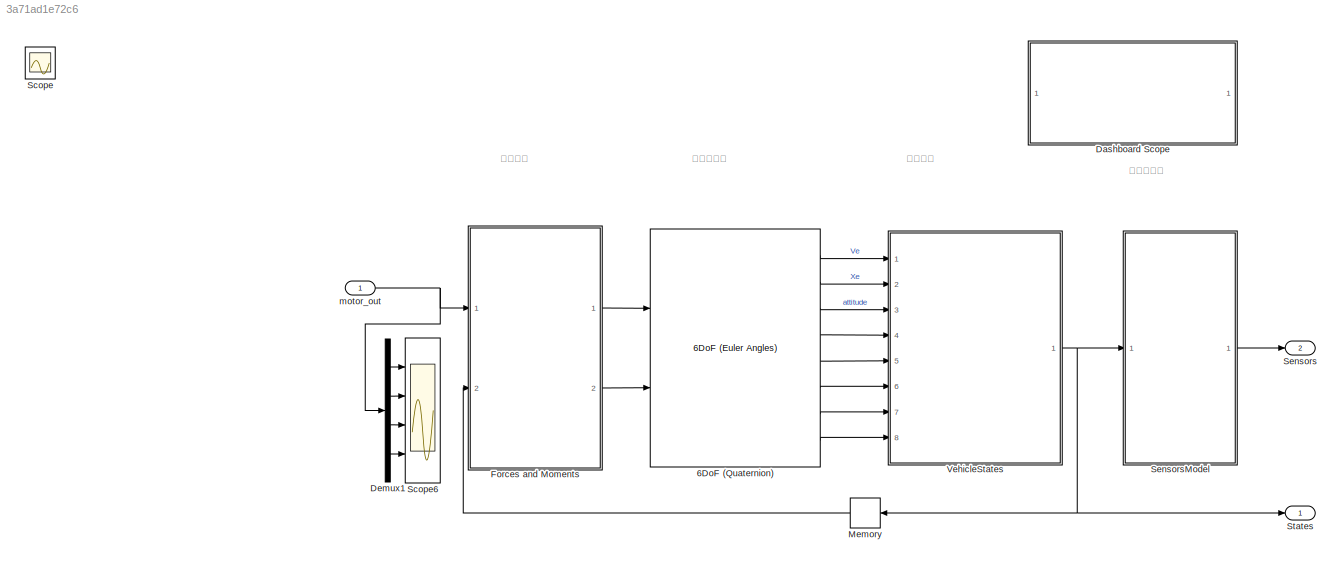
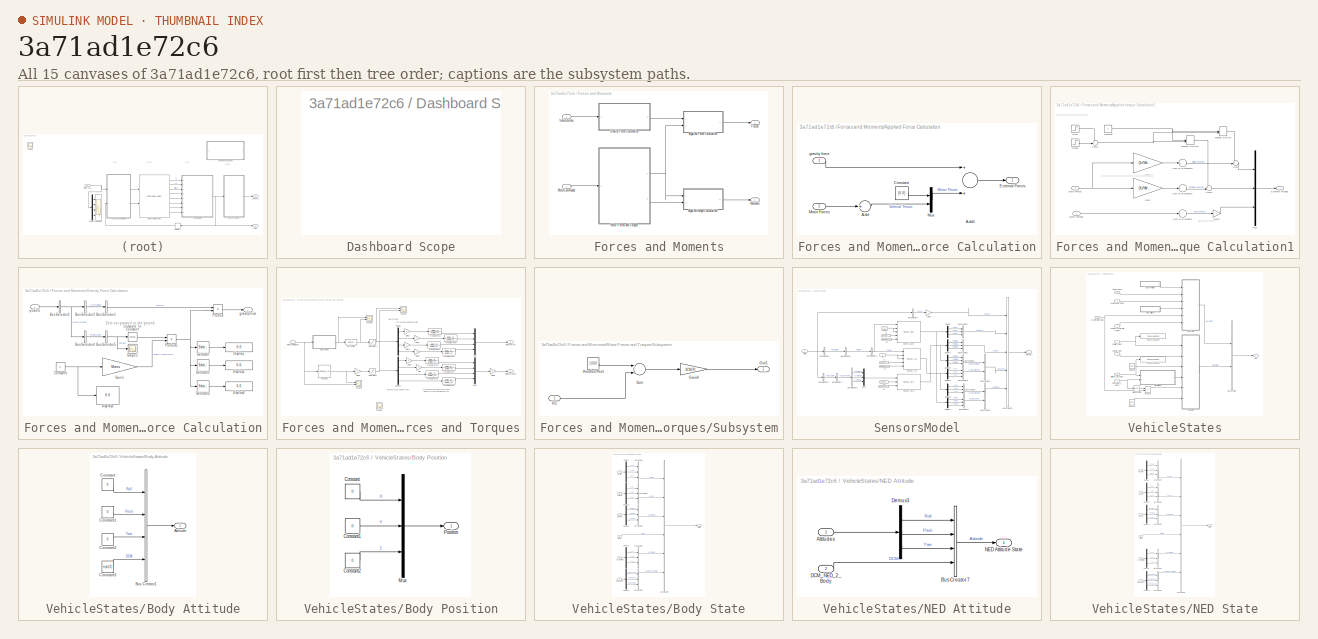
[diagram: thumbnail index - all 15 canvases of the model, root first then tree order]
MODEL slx_3a71ad1e72c6
KIND model
CONFIG AbsTol = auto
CONFIG FixedStep = 0.001
CONFIG InitFcn = %load QuadCopterParameters
CONFIG MaxStep = auto
CONFIG MinStep = auto
CONFIG RelTol = 1e-5
CONFIG SampleTimeConstraint = Unconstrained
CONFIG Solver = ode23t
CONFIG SolverMode = Auto
CONFIG SolverName = ode23t
CONFIG StartTime = 0.0
CONFIG StopTime = 12
BLOCK [Reference] 6DoF (Quaternion)  REF=aerolibobsolete/6DoF (Euler Angles)
  Ports = [2, 8]
  SourceBlock = aerolibobsolete/6DoF (Euler Angles)
  SourceType = 6DoF EoM (Body Axis)
BLOCK [SubSystem] Dashboard Scope
  DialogController = hmiCreateDDGDialog
  IsWebBlock = on
  MaskHideContents = on
  Ports = []
  RequestExecContextInheritance = off
  Variant = off
BLOCK [Demux] Demux1
  DisplayOption = bar
  Ports = [1, 4]
BLOCK [SubSystem] Forces and Moments
  Ports = [2, 2]
  RequestExecContextInheritance = off
  TreatAsAtomicUnit = on
  Variant = off
BLOCK [SubSystem] Forces and Moments/Applied Force Calculation
  Ports = [2, 1]
  RequestExecContextInheritance = off
  Variant = off
BLOCK [Sum] Forces and Moments/Applied Force Calculation/Add
  InputSameDT = off
  Inputs = +
  OutDataTypeStr = Inherit: Inherit via internal rule
  Ports = [1, 1]
  SaturateOnIntegerOverflow = off
BLOCK [Sum] Forces and Moments/Applied Force Calculation/Add1
  InputSameDT = off
  OutDataTypeStr = Inherit: Inherit via internal rule
  Ports = [2, 1]
  SaturateOnIntegerOverflow = off
BLOCK [Constant] Forces and Moments/Applied Force Calculation/Constant
  Value = [0 0]
BLOCK [Outport] Forces and Moments/Applied Force Calculation/External Forces
  IconDisplay = Port number
BLOCK [Inport] Forces and Moments/Applied Force Calculation/Motor Forces
  IconDisplay = Port number
  Port = 2
BLOCK [Mux] Forces and Moments/Applied Force Calculation/Mux
  DisplayOption = bar
  Inputs = 2
  Ports = [2, 1]
BLOCK [Inport] Forces and Moments/Applied Force Calculation/gravity force
  IconDisplay = Port number
BLOCK [SubSystem] Forces and Moments/Applied torque Calculation1
  Ports = [2, 1]
  RequestExecContextInheritance = off
  Variant = off
BLOCK [Constant] Forces and Moments/Applied torque Calculation1/Constant
  Value = 0
BLOCK [Outport] Forces and Moments/Applied torque Calculation1/External Torques
  IconDisplay = Port number
BLOCK [Gain] Forces and Moments/Applied torque Calculation1/Gain
  Gain = Qly*Myfactor
  OutDataTypeStr = Inherit: Inherit via internal rule
  ParamDataTypeStr = Inherit: Inherit via internal rule
  SaturateOnIntegerOverflow = off
BLOCK [Gain] Forces and Moments/Applied torque Calculation1/Gain1
  Gain = Qlx*Mxfactor
  OutDataTypeStr = Inherit: Inherit via internal rule
  ParamDataTypeStr = Inherit: Inherit via internal rule
  SaturateOnIntegerOverflow = off
BLOCK [Gain] Forces and Moments/Applied torque Calculation1/Gain2
  Gain = -1
  OutDataTypeStr = Inherit: Inherit via internal rule
  ParamDataTypeStr = Inherit: Inherit via internal rule
  SaturateOnIntegerOverflow = off
BLOCK [ManualSwitch] Forces and Moments/Applied torque Calculation1/Manual Switch
BLOCK [ManualSwitch] Forces and Moments/Applied torque Calculation1/Manual Switch1
BLOCK [Inport] Forces and Moments/Applied torque Calculation1/Motor Forces
  IconDisplay = Port number
BLOCK [Inport] Forces and Moments/Applied torque Calculation1/Motor Torques
  IconDisplay = Port number
  Port = 2
BLOCK [Mux] Forces and Moments/Applied torque Calculation1/Mux
  DisplayOption = bar
  Inputs = 3
  Ports = [3, 1]
BLOCK [Step] Forces and Moments/Applied torque Calculation1/Step
  SampleTime = 0
  Time = 5
BLOCK [Step] Forces and Moments/Applied torque Calculation1/Step1
  After = -1
  SampleTime = 0
  Time = 5.01
BLOCK [Sum] Forces and Moments/Applied torque Calculation1/Sum
  IconShape = round
  InputSameDT = off
  Inputs = ++|
  OutDataTypeStr = Inherit: Inherit via internal rule
  Ports = [2, 1]
  SaturateOnIntegerOverflow = off
BLOCK [Sum] Forces and Moments/Applied torque Calculation1/Sum of Elements
  InputSameDT = off
  Inputs = +
  OutDataTypeStr = Inherit: Inherit via internal rule
  Ports = [1, 1]
  SaturateOnIntegerOverflow = off
BLOCK [Sum] Forces and Moments/Applied torque Calculation1/Sum of Elements1
  InputSameDT = off
  Inputs = +
  OutDataTypeStr = Inherit: Inherit via internal rule
  Ports = [1, 1]
  SaturateOnIntegerOverflow = off
BLOCK [Sum] Forces and Moments/Applied torque Calculation1/Sum of Elements2
  InputSameDT = off
  Inputs = +
  OutDataTypeStr = Inherit: Inherit via internal rule
  Ports = [1, 1]
  SaturateOnIntegerOverflow = off
BLOCK [Sum] Forces and Moments/Applied torque Calculation1/Sum1
  IconShape = round
  InputSameDT = off
  Inputs = ++|
  OutDataTypeStr = Inherit: Inherit via internal rule
  Ports = [2, 1]
  SaturateOnIntegerOverflow = off
BLOCK [Sum] Forces and Moments/Applied torque Calculation1/Sum2
  IconShape = round
  InputSameDT = off
  Inputs = ++|
  OutDataTypeStr = Inherit: Inherit via internal rule
  Ports = [2, 1]
  SaturateOnIntegerOverflow = off
BLOCK [Outport] Forces and Moments/Forces
  IconDisplay = Port number
BLOCK [SubSystem] Forces and Moments/Gravity Force Calculation
  Ports = [1, 1]
  RequestExecContextInheritance = off
  Variant = off
BLOCK [BusSelector] Forces and Moments/Gravity Force Calculation/Bus Selector1
  OutputSignals = DCM
  Ports = [1, 1]
BLOCK [BusSelector] Forces and Moments/Gravity Force Calculation/Bus Selector2
  OutputSignals = NEDState
  Ports = [1, 1]
BLOCK [BusSelector] Forces and Moments/Gravity Force Calculation/Bus Selector3
  OutputSignals = Attitude
  Ports = [1, 1]
BLOCK [BusSelector] Forces and Moments/Gravity Force Calculation/Bus Selector4
  OutputSignals = Position
  Ports = [1, 1]
BLOCK [BusSelector] Forces and Moments/Gravity Force Calculation/Bus Selector5
  OutputSignals = zPos
  Ports = [1, 1]
BLOCK [Reference] Forces and Moments/Gravity Force Calculation/Compare To Constant  REF=simulink/Logic and Bit
Operations/Compare
To Constant
  Ports = [1, 1]
  SourceBlock = simulink/Logic and Bit\nOperations/Compare\nTo Constant
  SourceType = Compare To Constant
BLOCK [Constant] Forces and Moments/Gravity Force Calculation/Constant
  Value = g
BLOCK [Display] Forces and Moments/Gravity Force Calculation/Display
  Decimation = 1
  Ports = [1]
BLOCK [Display] Forces and Moments/Gravity Force Calculation/Display1
  Decimation = 1
  Ports = [1]
BLOCK [Display] Forces and Moments/Gravity Force Calculation/Display2
  Decimation = 1
  Ports = [1]
BLOCK [Display] Forces and Moments/Gravity Force Calculation/Display3
  Decimation = 1
  Ports = [1]
BLOCK [Gain] Forces and Moments/Gravity Force Calculation/Gain1
  Gain = Mass
  OutDataTypeStr = Inherit: Inherit via internal rule
  ParamDataTypeStr = Inherit: Inherit via internal rule
  SaturateOnIntegerOverflow = off
BLOCK [Product] Forces and Moments/Gravity Force Calculation/Product
  InputSameDT = off
  Multiplication = Matrix(*)
  OutDataTypeStr = Inherit: Inherit via internal rule
  Ports = [2, 1]
  RndMeth = Floor
  SaturateOnIntegerOverflow = off
BLOCK [Product] Forces and Moments/Gravity Force Calculation/Product1
  InputSameDT = off
  OutDataTypeStr = Inherit: Inherit via internal rule
  Ports = [2, 1]
  RndMeth = Floor
  SaturateOnIntegerOverflow = off
BLOCK [Scope] Forces and Moments/Gravity Force Calculation/Scope5
  Ports = [1]
  ScopeSpecificationString = C++SS(StrPVP('Location','[188, 390, 512, 629]'),StrPVP('Open','off'),MxPVP('AxesTitles',24,'struct(''axes1'',''%<SignalLabel>'')'),MxPVP('ScopeGraphics',28,'struct(''FigureColor'',''[0.5 0.5 0.5]'',''AxesColor'',''[0 0 0]'',''AxesTickColor'',''[1 1 1]'',''LineColors'',''[1 1 0;1 0 1;0 1 1;1 0 0;0 1 0;0 0 1]'',''LineStyles'',''-|-|-|-|-|-'',''LineWidths'',''[0.5 0.5 0.5 0.5 0.5 0.5]'',''MarkerStyle...<+292ch>
BLOCK [Selector] Forces and Moments/Gravity Force Calculation/Selector
  IndexOptions = Index vector (dialog)
  Indices = [1]
  InputPortWidth = 3
  OutputSizes = 1
  Ports = [1, 1]
BLOCK [Selector] Forces and Moments/Gravity Force Calculation/Selector1
  IndexOptions = Index vector (dialog)
  Indices = [2]
  InputPortWidth = 3
  OutputSizes = 1
  Ports = [1, 1]
BLOCK [Selector] Forces and Moments/Gravity Force Calculation/Selector2
  IndexOptions = Index vector (dialog)
  Indices = [3]
  InputPortWidth = 3
  OutputSizes = 1
  Ports = [1, 1]
BLOCK [Outport] Forces and Moments/Gravity Force Calculation/gravity force
  IconDisplay = Port number
BLOCK [Inport] Forces and Moments/Gravity Force Calculation/posinfo
  IconDisplay = Port number
BLOCK [Outport] Forces and Moments/Moments
  IconDisplay = Port number
  Port = 2
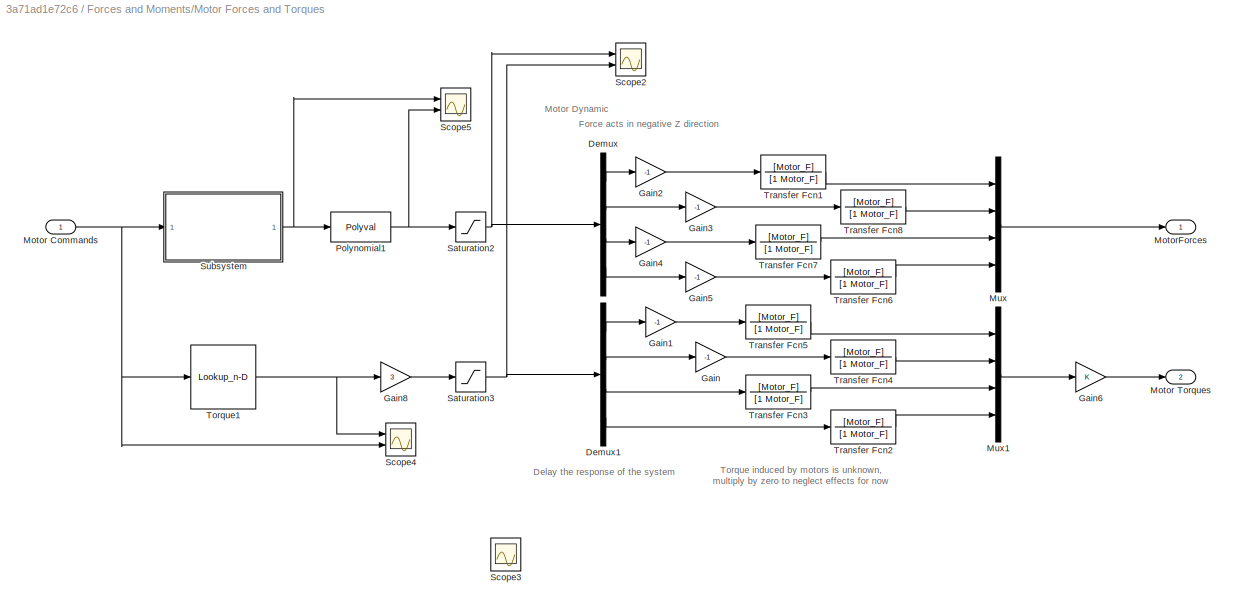
BLOCK [SubSystem] Forces and Moments/Motor Forces and Torques
  Ports = [1, 2]
  RequestExecContextInheritance = off
  Variant = off
BLOCK [Demux] Forces and Moments/Motor Forces and Torques/Demux
  DisplayOption = bar
  Ports = [1, 4]
BLOCK [Demux] Forces and Moments/Motor Forces and Torques/Demux1
  DisplayOption = bar
  Ports = [1, 4]
BLOCK [Gain] Forces and Moments/Motor Forces and Torques/Gain
  Gain = -1
  OutDataTypeStr = Inherit: Inherit via internal rule
  ParamDataTypeStr = Inherit: Inherit via internal rule
  SaturateOnIntegerOverflow = off
BLOCK [Gain] Forces and Moments/Motor Forces and Torques/Gain1
  Gain = -1
  OutDataTypeStr = Inherit: Inherit via internal rule
  ParamDataTypeStr = Inherit: Inherit via internal rule
  SaturateOnIntegerOverflow = off
BLOCK [Gain] Forces and Moments/Motor Forces and Torques/Gain2
  Gain = -1
  OutDataTypeStr = Inherit: Inherit via internal rule
  ParamDataTypeStr = Inherit: Inherit via internal rule
  SaturateOnIntegerOverflow = off
BLOCK [Gain] Forces and Moments/Motor Forces and Torques/Gain3
  Gain = -1
  OutDataTypeStr = Inherit: Inherit via internal rule
  ParamDataTypeStr = Inherit: Inherit via internal rule
  SaturateOnIntegerOverflow = off
BLOCK [Gain] Forces and Moments/Motor Forces and Torques/Gain4
  Gain = -1
  OutDataTypeStr = Inherit: Inherit via internal rule
  ParamDataTypeStr = Inherit: Inherit via internal rule
  SaturateOnIntegerOverflow = off
BLOCK [Gain] Forces and Moments/Motor Forces and Torques/Gain5
  Gain = -1
  OutDataTypeStr = Inherit: Inherit via internal rule
  ParamDataTypeStr = Inherit: Inherit via internal rule
  SaturateOnIntegerOverflow = off
BLOCK [Gain] Forces and Moments/Motor Forces and Torques/Gain6
  OutDataTypeStr = Inherit: Inherit via internal rule
  ParamDataTypeStr = Inherit: Inherit via internal rule
  SaturateOnIntegerOverflow = off
BLOCK [Gain] Forces and Moments/Motor Forces and Torques/Gain8
  Gain = 3
  OutDataTypeStr = Inherit: Inherit via internal rule
  ParamDataTypeStr = Inherit: Inherit via internal rule
  SaturateOnIntegerOverflow = off
BLOCK [Inport] Forces and Moments/Motor Forces and Torques/Motor Commands
  IconDisplay = Port number
BLOCK [Outport] Forces and Moments/Motor Forces and Torques/Motor Torques
  IconDisplay = Port number
  Port = 2
BLOCK [Outport] Forces and Moments/Motor Forces and Torques/MotorForces
  IconDisplay = Port number
BLOCK [Mux] Forces and Moments/Motor Forces and Torques/Mux
  DisplayOption = bar
  Ports = [4, 1]
BLOCK [Mux] Forces and Moments/Motor Forces and Torques/Mux1
  DisplayOption = bar
  Ports = [4, 1]
BLOCK [Polyval] Forces and Moments/Motor Forces and Torques/Polynomial1
  Coefs = motorCoeffs
BLOCK [Saturate] Forces and Moments/Motor Forces and Torques/Saturation2
  InputPortMap = u0
  LowerLimit = 0
  Ports = [1, 1]
  UpperLimit = 8.1*4
BLOCK [Saturate] Forces and Moments/Motor Forces and Torques/Saturation3
  InputPortMap = u0
  LowerLimit = 0
  Ports = [1, 1]
  UpperLimit = 0.189*3
BLOCK [Scope] Forces and Moments/Motor Forces and Torques/Scope2
  NumInputPorts = 2
  Ports = [2]
  ScopeSpecificationString = C++SS(StrPVP('Location','[11, 60, 692, 729]'),StrPVP('Open','off'),MxPVP('AxesTitles',24,'struct(''axes1'',''%<SignalLabel>'',''axes2'',''%<SignalLabel>'')'),MxPVP('ScopeGraphics',28,'struct(''FigureColor'',''[0.5 0.5 0.5]'',''AxesColor'',''[0 0 0]'',''AxesTickColor'',''[1 1 1]'',''LineColors'',''[1 1 0;1 0 1;0 1 1;1 0 0;0 1 0;0 0 1]'',''LineStyles'',''-|-|-|-|-|-'',''LineWidths'',''[0.5 0.5 0.5 0...<+400ch>
BLOCK [Scope] Forces and Moments/Motor Forces and Torques/Scope3
  NumInputPorts = 2
  Ports = [2]
  ScopeSpecificationString = C++SS(StrPVP('Location','[279, 158, 1152, 671]'),StrPVP('Open','off'),MxPVP('AxesTitles',24,'struct(''axes1'',''%<SignalLabel>'',''axes2'',''%<SignalLabel>'')'),MxPVP('ScopeGraphics',28,'struct(''FigureColor'',''[0.5 0.5 0.5]'',''AxesColor'',''[0 0 0]'',''AxesTickColor'',''[1 1 1]'',''LineColors'',''[1 1 0;1 0 1;0 1 1;1 0 0;0 1 0;0 0 1]'',''LineStyles'',''-|-|-|-|-|-'',''LineWidths'',''[0.5 0.5 0....<+327ch>
BLOCK [Scope] Forces and Moments/Motor Forces and Torques/Scope4
  NumInputPorts = 2
  Ports = [2]
  ScopeSpecificationString = C++SS(StrPVP('Location','[11, 60, 692, 729]'),StrPVP('Open','off'),MxPVP('AxesTitles',24,'struct(''axes1'',''%<SignalLabel>'',''axes2'',''%<SignalLabel>'')'),MxPVP('ScopeGraphics',28,'struct(''FigureColor'',''[0.5 0.5 0.5]'',''AxesColor'',''[0 0 0]'',''AxesTickColor'',''[1 1 1]'',''LineColors'',''[1 1 0;1 0 1;0 1 1;1 0 0;0 1 0;0 0 1]'',''LineStyles'',''-|-|-|-|-|-'',''LineWidths'',''[0.5 0.5 0.5 0...<+400ch>
BLOCK [Scope] Forces and Moments/Motor Forces and Torques/Scope5
  NumInputPorts = 2
  Ports = [2]
  ScopeSpecificationString = C++SS(StrPVP('Location','[11, 60, 692, 729]'),StrPVP('Open','off'),MxPVP('AxesTitles',24,'struct(''axes1'',''%<SignalLabel>'',''axes2'',''%<SignalLabel>'')'),MxPVP('ScopeGraphics',28,'struct(''FigureColor'',''[0.5 0.5 0.5]'',''AxesColor'',''[0 0 0]'',''AxesTickColor'',''[1 1 1]'',''LineColors'',''[1 1 0;1 0 1;0 1 1;1 0 0;0 1 0;0 0 1]'',''LineStyles'',''-|-|-|-|-|-'',''LineWidths'',''[0.5 0.5 0.5 0...<+365ch>
BLOCK [SubSystem] Forces and Moments/Motor Forces and Torques/Subsystem
  Ports = [1, 1]
  RequestExecContextInheritance = off
  Variant = off
BLOCK [Gain] Forces and Moments/Motor Forces and Torques/Subsystem/Gain9
  Gain = 1/10.0
  OutDataTypeStr = Inherit: Inherit via internal rule
  ParamDataTypeStr = Inherit: Inherit via internal rule
  SaturateOnIntegerOverflow = off
BLOCK [Inport] Forces and Moments/Motor Forces and Torques/Subsystem/In1
  IconDisplay = Port number
BLOCK [Outport] Forces and Moments/Motor Forces and Torques/Subsystem/Out1
  IconDisplay = Port number
BLOCK [Sum] Forces and Moments/Motor Forces and Torques/Subsystem/Sum
  InputSameDT = off
  Inputs = -+
  OutDataTypeStr = Inherit: Inherit via internal rule
  Ports = [2, 1]
  SaturateOnIntegerOverflow = off
BLOCK [Constant] Forces and Moments/Motor Forces and Torques/Subsystem/throttleOffset
  Value = 1000
BLOCK [Lookup_n-D] Forces and Moments/Motor Forces and Torques/Torque1
  BreakpointsForDimension1 = [1160  1300  1389  1500   1600  1720  1824]
  ExtrapMethod = Clip
  NumberOfTableDimensions = 1
  Ports = [1, 1]
  RndMeth = Simplest
  Table = 0.00980665*0.3048*[0        10    20    35     42    58    63]
  UseLastTableValue = on
BLOCK [TransferFcn] Forces and Moments/Motor Forces and Torques/Transfer Fcn1
  Denominator = [1 Motor_F]
  Numerator = [Motor_F]
BLOCK [TransferFcn] Forces and Moments/Motor Forces and Torques/Transfer Fcn2
  Denominator = [1 Motor_F]
  Numerator = [Motor_F]
BLOCK [TransferFcn] Forces and Moments/Motor Forces and Torques/Transfer Fcn3
  Denominator = [1 Motor_F]
  Numerator = [Motor_F]
BLOCK [TransferFcn] Forces and Moments/Motor Forces and Torques/Transfer Fcn4
  Denominator = [1 Motor_F]
  Numerator = [Motor_F]
BLOCK [TransferFcn] Forces and Moments/Motor Forces and Torques/Transfer Fcn5
  Denominator = [1 Motor_F]
  Numerator = [Motor_F]
BLOCK [TransferFcn] Forces and Moments/Motor Forces and Torques/Transfer Fcn6
  Denominator = [1 Motor_F]
  Numerator = [Motor_F]
BLOCK [TransferFcn] Forces and Moments/Motor Forces and Torques/Transfer Fcn7
  Denominator = [1 Motor_F]
  Numerator = [Motor_F]
BLOCK [TransferFcn] Forces and Moments/Motor Forces and Torques/Transfer Fcn8
  Denominator = [1 Motor_F]
  Numerator = [Motor_F]
BLOCK [Inport] Forces and Moments/MotorCommands
  IconDisplay = Port number
BLOCK [Inport] Forces and Moments/VehicleState
  IconDisplay = Port number
  Port = 2
BLOCK [Memory] Memory
BLOCK [Scope] Scope
  IOType = viewer
  Ports = []
  ScopeSpecificationString = Simulink.scopes.TimeScopeBlockCfg('CurrentConfiguration', extmgr.ConfigurationSet(extmgr.Configuration('Core','General UI',true),extmgr.Configuration('Core','Source UI',true),extmgr.Configuration('Sources','WiredSimulink',true,'DataLoggingVariableName','ScopeData1'),extmgr.Configuration('Visuals','Time Domain',true,'SerializedDisplays',{struct('MinYLimReal','1593.05137','MaxYLimReal','1932.29698',...<+1480ch>
BLOCK [Scope] Scope6
  NumInputPorts = 4
  Ports = [4]
  ScopeSpecificationString = Simulink.scopes.TimeScopeBlockCfg('CurrentConfiguration', extmgr.ConfigurationSet(extmgr.Configuration('Core','General UI',true),extmgr.Configuration('Core','Source UI',true),extmgr.Configuration('Sources','WiredSimulink',true,'DataLoggingVariableName','ScopeData19','DataLoggingSaveFormat','Array','DataLoggingDecimation','1','DataLoggingDecimateData',true),extmgr.Configuration('Visuals','Time Doma...<+4065ch>
BLOCK [Outport] Sensors
  IconDisplay = Port number
  OutDataTypeStr = Bus: Sensors
  Port = 2
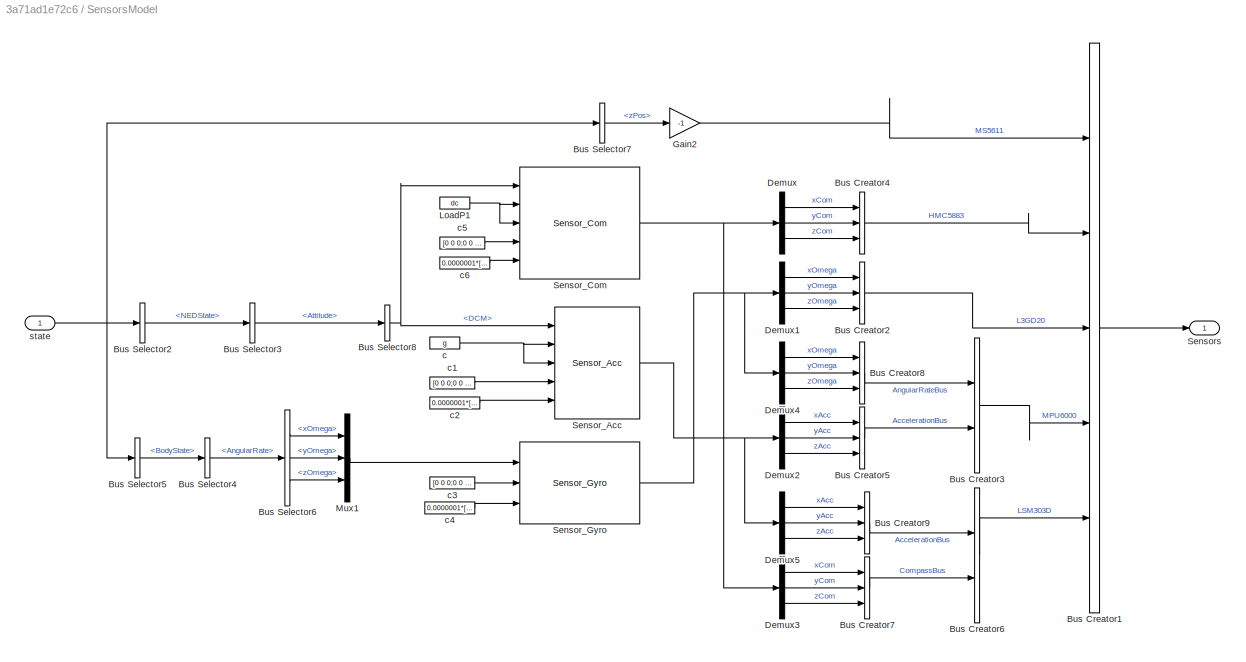
BLOCK [SubSystem] SensorsModel
  Ports = [1, 1]
  RequestExecContextInheritance = off
  Variant = off
BLOCK [BusCreator] SensorsModel/Bus Creator1
  DisplayOption = bar
  InheritFromInputs = on
  Inputs = 5
  NonVirtualBus = on
  OutDataTypeStr = Bus: Sensors
  Ports = [5, 1]
BLOCK [BusCreator] SensorsModel/Bus Creator2
  DisplayOption = bar
  InheritFromInputs = on
  Inputs = 3
  NonVirtualBus = on
  OutDataTypeStr = Bus: AngularRateBus
  Ports = [3, 1]
BLOCK [BusCreator] SensorsModel/Bus Creator3
  DisplayOption = bar
  InheritFromInputs = on
  Inputs = 2
  NonVirtualBus = on
  OutDataTypeStr = Bus: MPU6000
  Ports = [2, 1]
BLOCK [BusCreator] SensorsModel/Bus Creator4
  DisplayOption = bar
  InheritFromInputs = on
  Inputs = 3
  NonVirtualBus = on
  OutDataTypeStr = Bus: CompassBus
  Ports = [3, 1]
BLOCK [BusCreator] SensorsModel/Bus Creator5
  DisplayOption = bar
  InheritFromInputs = on
  Inputs = 3
  NonVirtualBus = on
  OutDataTypeStr = Bus: AccelerationBus
  Ports = [3, 1]
BLOCK [BusCreator] SensorsModel/Bus Creator6
  DisplayOption = bar
  InheritFromInputs = on
  Inputs = 2
  NonVirtualBus = on
  OutDataTypeStr = Bus: LSM303D
  Ports = [2, 1]
BLOCK [BusCreator] SensorsModel/Bus Creator7
  DisplayOption = bar
  InheritFromInputs = on
  Inputs = 3
  NonVirtualBus = on
  OutDataTypeStr = Bus: CompassBus
  Ports = [3, 1]
BLOCK [BusCreator] SensorsModel/Bus Creator8
  DisplayOption = bar
  InheritFromInputs = on
  Inputs = 3
  NonVirtualBus = on
  OutDataTypeStr = Bus: AngularRateBus
  Ports = [3, 1]
BLOCK [BusCreator] SensorsModel/Bus Creator9
  DisplayOption = bar
  InheritFromInputs = on
  Inputs = 3
  NonVirtualBus = on
  OutDataTypeStr = Bus: AccelerationBus
  Ports = [3, 1]
BLOCK [BusSelector] SensorsModel/Bus Selector2
  OutputSignals = NEDState
  Ports = [1, 1]
BLOCK [BusSelector] SensorsModel/Bus Selector3
  OutputSignals = Attitude
  Ports = [1, 1]
BLOCK [BusSelector] SensorsModel/Bus Selector4
  OutputSignals = AngularRate
  Ports = [1, 1]
BLOCK [BusSelector] SensorsModel/Bus Selector5
  OutputSignals = BodyState
  Ports = [1, 1]
BLOCK [BusSelector] SensorsModel/Bus Selector6
  OutputSignals = xOmega,yOmega,zOmega
  Ports = [1, 3]
BLOCK [BusSelector] SensorsModel/Bus Selector7
  OutputSignals = NEDState.Position.zPos
  Ports = [1, 1]
BLOCK [BusSelector] SensorsModel/Bus Selector8
  OutputSignals = DCM
  Ports = [1, 1]
BLOCK [Demux] SensorsModel/Demux
  DisplayOption = bar
  Outputs = 3
  Ports = [1, 3]
BLOCK [Demux] SensorsModel/Demux1
  DisplayOption = bar
  Outputs = 3
  Ports = [1, 3]
BLOCK [Demux] SensorsModel/Demux2
  DisplayOption = bar
  Outputs = 3
  Ports = [1, 3]
BLOCK [Demux] SensorsModel/Demux3
  DisplayOption = bar
  Outputs = 3
  Ports = [1, 3]
BLOCK [Demux] SensorsModel/Demux4
  DisplayOption = bar
  Outputs = 3
  Ports = [1, 3]
BLOCK [Demux] SensorsModel/Demux5
  DisplayOption = bar
  Outputs = 3
  Ports = [1, 3]
BLOCK [Gain] SensorsModel/Gain2
  Gain = -1
  OutDataTypeStr = Inherit: Inherit via internal rule
  ParamDataTypeStr = Inherit: Inherit via internal rule
  SaturateOnIntegerOverflow = off
BLOCK [Constant] SensorsModel/LoadP1
  SampleTime = 0
  Value = dc
BLOCK [Mux] SensorsModel/Mux1
  DisplayOption = bar
  Inputs = 3
  Ports = [3, 1]
BLOCK [Reference] SensorsModel/Sensor_Acc  REF=Lib_Sensors/Sensor_Acc
  Ports = [5, 1]
  SourceBlock = Lib_Sensors/Sensor_Acc
  SourceType = SubSystem
BLOCK [Reference] SensorsModel/Sensor_Com  REF=Lib_Sensors/Sensor_Com
  Ports = [5, 1]
  SourceBlock = Lib_Sensors/Sensor_Com
  SourceType = SubSystem
BLOCK [Reference] SensorsModel/Sensor_Gyro  REF=Lib_Sensors/Sensor_Gyro
  Ports = [3, 1]
  SourceBlock = Lib_Sensors/Sensor_Gyro
  SourceType = SubSystem
BLOCK [Outport] SensorsModel/Sensors
  IconDisplay = Port number
  OutDataTypeStr = Bus: Sensors
BLOCK [Constant] SensorsModel/c
  SampleTime = 0
  Value = g
BLOCK [Constant] SensorsModel/c1
  SampleTime = 0
  Value = [0 0 0;0 0 0; 0 0 0]
BLOCK [Constant] SensorsModel/c2
  SampleTime = 0
  Value = 0.0000001*[1 1 1]'
BLOCK [Constant] SensorsModel/c3
  SampleTime = 0
  Value = [0 0 0;0 0 0; 0 0 0]
BLOCK [Constant] SensorsModel/c4
  SampleTime = 0
  Value = 0.0000001*[1 1 1]'
BLOCK [Constant] SensorsModel/c5
  SampleTime = 0
  Value = [0 0 0;0 0 0; 0 0 0]
BLOCK [Constant] SensorsModel/c6
  SampleTime = 0
  Value = 0.0000001*[1 1 1]'
BLOCK [Inport] SensorsModel/state
  IconDisplay = Port number
BLOCK [Outport] States
  IconDisplay = Port number
  OutDataTypeStr = Bus: VehicleStates
BLOCK [SubSystem] VehicleStates
  Ports = [8, 1]
  RequestExecContextInheritance = off
  Variant = off
BLOCK [Inport] VehicleStates/Acceleration_Body
  IconDisplay = Port number
  Port = 8
BLOCK [Inport] VehicleStates/AngularAcceleration_Body
  IconDisplay = Port number
  Port = 7
BLOCK [Inport] VehicleStates/AngularRate_Body
  IconDisplay = Port number
  Port = 6
BLOCK [Inport] VehicleStates/Attitudes_wrt_NED
  IconDisplay = Port number
  Port = 3
BLOCK [SubSystem] VehicleStates/Body Attitude
  Ports = [0, 1]
  RequestExecContextInheritance = off
  Variant = off
BLOCK [Outport] VehicleStates/Body Attitude/Attitude
  IconDisplay = Port number
BLOCK [BusCreator] VehicleStates/Body Attitude/Bus Creator1
  DisplayOption = bar
  InheritFromInputs = on
  Inputs = 4
  NonVirtualBus = on
  OutDataTypeStr = Bus: AttitudeBus
  Ports = [4, 1]
BLOCK [Constant] VehicleStates/Body Attitude/Constant
  Value = 0
BLOCK [Constant] VehicleStates/Body Attitude/Constant1
  Value = 0
BLOCK [Constant] VehicleStates/Body Attitude/Constant2
  Value = 0
BLOCK [Constant] VehicleStates/Body Attitude/Constant3
  Value = eye(3)
BLOCK [SubSystem] VehicleStates/Body Position
  Ports = [0, 1]
  RequestExecContextInheritance = off
  Variant = off
BLOCK [Constant] VehicleStates/Body Position/Constant
  Value = 0
BLOCK [Constant] VehicleStates/Body Position/Constant1
  Value = 0
BLOCK [Constant] VehicleStates/Body Position/Constant2
  Value = 0
BLOCK [Mux] VehicleStates/Body Position/Mux
  DisplayOption = bar
  Inputs = 3
  Ports = [3, 1]
BLOCK [Outport] VehicleStates/Body Position/Position
  IconDisplay = Port number
BLOCK [SubSystem] VehicleStates/Body State
  Ports = [6, 1]
  RequestExecContextInheritance = off
  Variant = off
BLOCK [Inport] VehicleStates/Body State/Acceleration
  IconDisplay = Port number
  Port = 5
BLOCK [Inport] VehicleStates/Body State/Attitude
  IconDisplay = Port number
  Port = 4
BLOCK [BusCreator] VehicleStates/Body State/Bus Creator2
  DisplayOption = bar
  InheritFromInputs = on
  Inputs = 6
  NonVirtualBus = on
  OutDataTypeStr = Bus: States
  Ports = [6, 1]
BLOCK [BusCreator] VehicleStates/Body State/Bus Creator4
  DisplayOption = bar
  InheritFromInputs = on
  Inputs = 3
  NonVirtualBus = on
  OutDataTypeStr = Bus: PositionBus
  Ports = [3, 1]
BLOCK [BusCreator] VehicleStates/Body State/Bus Creator5
  DisplayOption = bar
  InheritFromInputs = on
  Inputs = 3
  NonVirtualBus = on
  OutDataTypeStr = Bus: VelocityBus
  Ports = [3, 1]
BLOCK [BusCreator] VehicleStates/Body State/Bus Creator6
  DisplayOption = bar
  InheritFromInputs = on
  Inputs = 3
  NonVirtualBus = on
  OutDataTypeStr = Bus: AccelerationBus
  Ports = [3, 1]
BLOCK [BusCreator] VehicleStates/Body State/Bus Creator8
  DisplayOption = bar
  InheritFromInputs = on
  Inputs = 3
  NonVirtualBus = on
  OutDataTypeStr = Bus: AngularRateBus
  Ports = [3, 1]
BLOCK [BusCreator] VehicleStates/Body State/Bus Creator9
  DisplayOption = bar
  InheritFromInputs = on
  Inputs = 3
  NonVirtualBus = on
  OutDataTypeStr = Bus: AngularAccelerationBus
  Ports = [3, 1]
BLOCK [Demux] VehicleStates/Body State/Demux
  DisplayOption = bar
  Outputs = 3
  Ports = [1, 3]
BLOCK [Demux] VehicleStates/Body State/Demux1
  DisplayOption = bar
  Outputs = 3
  Ports = [1, 3]
BLOCK [Demux] VehicleStates/Body State/Demux2
  DisplayOption = bar
  Outputs = 3
  Ports = [1, 3]
BLOCK [Demux] VehicleStates/Body State/Demux4
  DisplayOption = bar
  Outputs = 3
  Ports = [1, 3]
BLOCK [Demux] VehicleStates/Body State/Demux5
  DisplayOption = bar
  Outputs = 3
  Ports = [1, 3]
BLOCK [Inport] VehicleStates/Body State/Omega
  IconDisplay = Port number
  Port = 3
BLOCK [Inport] VehicleStates/Body State/OmegaDot
  IconDisplay = Port number
  Port = 6
BLOCK [Inport] VehicleStates/Body State/Position
  IconDisplay = Port number
BLOCK [Outport] VehicleStates/Body State/State
  IconDisplay = Port number
  OutDataTypeStr = Bus: States
BLOCK [Inport] VehicleStates/Body State/Velocity
  IconDisplay = Port number
  Port = 2
BLOCK [BusCreator] VehicleStates/Bus Creator
  DisplayOption = bar
  InheritFromInputs = on
  Inputs = 2
  NonVirtualBus = on
  OutDataTypeStr = Bus: VehicleStates
  Ports = [2, 1]
BLOCK [Inport] VehicleStates/DCM_NED_2_Body
  IconDisplay = Port number
  Port = 4
BLOCK [Math] VehicleStates/Math Function
  Operator = transpose
  Ports = [1, 1]
BLOCK [SubSystem] VehicleStates/NED Attitude
  Ports = [2, 1]
  RequestExecContextInheritance = off
  Variant = off
BLOCK [Inport] VehicleStates/NED Attitude/Attitudes
  IconDisplay = Port number
BLOCK [BusCreator] VehicleStates/NED Attitude/Bus Creator7
  DisplayOption = bar
  InheritFromInputs = on
  Inputs = 4
  NonVirtualBus = on
  OutDataTypeStr = Bus: AttitudeBus
  Ports = [4, 1]
BLOCK [Inport] VehicleStates/NED Attitude/DCM_NED_2_Body
  IconDisplay = Port number
  Port = 2
BLOCK [Demux] VehicleStates/NED Attitude/Demux3
  DisplayOption = bar
  Outputs = 3
  Ports = [1, 3]
BLOCK [Outport] VehicleStates/NED Attitude/NED Attitude State
  IconDisplay = Port number
BLOCK [SubSystem] VehicleStates/NED State
  Ports = [6, 1]
  RequestExecContextInheritance = off
  Variant = off
BLOCK [Inport] VehicleStates/NED State/Acceleration
  IconDisplay = Port number
  Port = 5
BLOCK [Inport] VehicleStates/NED State/Attitude
  IconDisplay = Port number
  Port = 4
BLOCK [BusCreator] VehicleStates/NED State/Bus Creator2
  DisplayOption = bar
  InheritFromInputs = on
  Inputs = 6
  NonVirtualBus = on
  OutDataTypeStr = Bus: States
  Ports = [6, 1]
BLOCK [BusCreator] VehicleStates/NED State/Bus Creator4
  DisplayOption = bar
  InheritFromInputs = on
  Inputs = 3
  NonVirtualBus = on
  OutDataTypeStr = Bus: PositionBus
  Ports = [3, 1]
BLOCK [BusCreator] VehicleStates/NED State/Bus Creator5
  DisplayOption = bar
  InheritFromInputs = on
  Inputs = 3
  NonVirtualBus = on
  OutDataTypeStr = Bus: VelocityBus
  Ports = [3, 1]
BLOCK [BusCreator] VehicleStates/NED State/Bus Creator6
  DisplayOption = bar
  InheritFromInputs = on
  Inputs = 3
  NonVirtualBus = on
  OutDataTypeStr = Bus: AccelerationBus
  Ports = [3, 1]
BLOCK [BusCreator] VehicleStates/NED State/Bus Creator8
  DisplayOption = bar
  InheritFromInputs = on
  Inputs = 3
  NonVirtualBus = on
  OutDataTypeStr = Bus: AngularRateBus
  Ports = [3, 1]
BLOCK [BusCreator] VehicleStates/NED State/Bus Creator9
  DisplayOption = bar
  InheritFromInputs = on
  Inputs = 3
  NonVirtualBus = on
  OutDataTypeStr = Bus: AngularAccelerationBus
  Ports = [3, 1]
BLOCK [Demux] VehicleStates/NED State/Demux
  DisplayOption = bar
  Outputs = 3
  Ports = [1, 3]
BLOCK [Demux] VehicleStates/NED State/Demux1
  DisplayOption = bar
  Outputs = 3
  Ports = [1, 3]
BLOCK [Demux] VehicleStates/NED State/Demux2
  DisplayOption = bar
  Outputs = 3
  Ports = [1, 3]
BLOCK [Demux] VehicleStates/NED State/Demux4
  DisplayOption = bar
  Outputs = 3
  Ports = [1, 3]
BLOCK [Demux] VehicleStates/NED State/Demux5
  DisplayOption = bar
  Outputs = 3
  Ports = [1, 3]
BLOCK [Inport] VehicleStates/NED State/Omega
  IconDisplay = Port number
  Port = 3
BLOCK [Inport] VehicleStates/NED State/OmegaDot
  IconDisplay = Port number
  Port = 6
BLOCK [Inport] VehicleStates/NED State/Position
  IconDisplay = Port number
BLOCK [Outport] VehicleStates/NED State/State
  IconDisplay = Port number
  OutDataTypeStr = Bus: States
BLOCK [Inport] VehicleStates/NED State/Velocity
  IconDisplay = Port number
  Port = 2
BLOCK [Constant] VehicleStates/Not Used
  Value = [0 0 0]
BLOCK [Constant] VehicleStates/Not Used1
  Value = [0 0 0]
BLOCK [Outport] VehicleStates/Out1
  IconDisplay = Port number
BLOCK [Inport] VehicleStates/Position_NED
  IconDisplay = Port number
  Port = 2
BLOCK [Product] VehicleStates/Product
  InputSameDT = off
  Multiplication = Matrix(*)
  OutDataTypeStr = Inherit: Inherit via internal rule
  Ports = [2, 1]
  RndMeth = Floor
  SaturateOnIntegerOverflow = off
BLOCK [ToWorkspace] VehicleStates/To Workspace1
  MaxDataPoints = inf
  Ports = [1]
  SampleTime = -1
  SaveFormat = Structure
  VariableName = NED_a_out
BLOCK [ToWorkspace] VehicleStates/To Workspace3
  MaxDataPoints = inf
  Ports = [1]
  SampleTime = -1
  SaveFormat = Structure
  VariableName = NED_x_out
BLOCK [Inport] VehicleStates/Velocity_Body
  IconDisplay = Port number
  Port = 5
BLOCK [Inport] VehicleStates/Velocity_NED
  IconDisplay = Port number
BLOCK [Inport] motor_out
  IconDisplay = Port number
  PortDimensions = [4,1]
ANNOTATION (root): 传感器模型
ANNOTATION (root): 动力学模型
ANNOTATION (root): 动力计算
ANNOTATION (root): 状态总线
ANNOTATION Forces and Moments/Applied torque Calculation1: Z轴方向动量矩守恒
ANNOTATION Forces and Moments/Applied torque Calculation1: 可以在此处加上力矩，模拟环境干扰
ANNOTATION Forces and Moments/Applied torque Calculation1: 定义这两个向量时，要注意力的方向，正方向是指向地的。
ANNOTATION Forces and Moments/Gravity Force Calculation: Zero out gravity if on the ground
ANNOTATION Forces and Moments/Motor Forces and Torques: Delay the response of the system
ANNOTATION Forces and Moments/Motor Forces and Torques: Force acts in negative Z direction
ANNOTATION Forces and Moments/Motor Forces and Torques: Motor Dynamic
ANNOTATION Forces and Moments/Motor Forces and Torques: Torque induced by motors is unknown, multiply by zero to neglect effects for now
LINE 6DoF (Quaternion):1 -> VehicleStates:1
LINE 6DoF (Quaternion):2 -> VehicleStates:2
LINE 6DoF (Quaternion):3 -> VehicleStates:3
LINE 6DoF (Quaternion):4 -> VehicleStates:4
LINE 6DoF (Quaternion):5 -> VehicleStates:5
LINE 6DoF (Quaternion):6 -> VehicleStates:6
LINE 6DoF (Quaternion):7 -> VehicleStates:7
LINE 6DoF (Quaternion):8 -> VehicleStates:8
LINE Demux1:1 -> Scope6:1
LINE Demux1:2 -> Scope6:2
LINE Demux1:3 -> Scope6:3
LINE Demux1:4 -> Scope6:4
LINE Forces and Moments/Applied Force Calculation/Add1:1 -> Forces and Moments/Applied Force Calculation/External Forces:1
LINE Forces and Moments/Applied Force Calculation/Add:1 -> Forces and Moments/Applied Force Calculation/Mux:2
LINE Forces and Moments/Applied Force Calculation/Constant:1 -> Forces and Moments/Applied Force Calculation/Mux:1
LINE Forces and Moments/Applied Force Calculation/Motor Forces:1 -> Forces and Moments/Applied Force Calculation/Add:1
LINE Forces and Moments/Applied Force Calculation/Mux:1 -> Forces and Moments/Applied Force Calculation/Add1:2
LINE Forces and Moments/Applied Force Calculation/gravity force:1 -> Forces and Moments/Applied Force Calculation/Add1:1
LINE Forces and Moments/Applied Force Calculation:1 -> Forces and Moments/Forces:1
NET Forces and Moments/Applied torque Calculation1/Constant:1 -> Forces and Moments/Applied torque Calculation1/Manual Switch1:1, Forces and Moments/Applied torque Calculation1/Manual Switch:1
LINE Forces and Moments/Applied torque Calculation1/Gain1:1 -> Forces and Moments/Applied torque Calculation1/Sum of Elements2:1
LINE Forces and Moments/Applied torque Calculation1/Gain2:1 -> Forces and Moments/Applied torque Calculation1/Mux:3
LINE Forces and Moments/Applied torque Calculation1/Gain:1 -> Forces and Moments/Applied torque Calculation1/Sum of Elements1:1
LINE Forces and Moments/Applied torque Calculation1/Manual Switch1:1 -> Forces and Moments/Applied torque Calculation1/Sum2:1
LINE Forces and Moments/Applied torque Calculation1/Manual Switch:1 -> Forces and Moments/Applied torque Calculation1/Sum:1
NET Forces and Moments/Applied torque Calculation1/Motor Forces:1 -> Forces and Moments/Applied torque Calculation1/Gain1:1, Forces and Moments/Applied torque Calculation1/Gain:1
LINE Forces and Moments/Applied torque Calculation1/Motor Torques:1 -> Forces and Moments/Applied torque Calculation1/Sum of Elements:1
LINE Forces and Moments/Applied torque Calculation1/Mux:1 -> Forces and Moments/Applied torque Calculation1/External Torques:1
LINE Forces and Moments/Applied torque Calculation1/Step1:1 -> Forces and Moments/Applied torque Calculation1/Sum1:2
LINE Forces and Moments/Applied torque Calculation1/Step:1 -> Forces and Moments/Applied torque Calculation1/Sum1:1
LINE Forces and Moments/Applied torque Calculation1/Sum of Elements1:1 -> Forces and Moments/Applied torque Calculation1/Sum2:2
LINE Forces and Moments/Applied torque Calculation1/Sum of Elements2:1 -> Forces and Moments/Applied torque Calculation1/Sum:2
LINE Forces and Moments/Applied torque Calculation1/Sum of Elements:1 -> Forces and Moments/Applied torque Calculation1/Gain2:1
NET Forces and Moments/Applied torque Calculation1/Sum1:1 -> Forces and Moments/Applied torque Calculation1/Manual Switch1:2, Forces and Moments/Applied torque Calculation1/Manual Switch:2
LINE Forces and Moments/Applied torque Calculation1/Sum2:1 -> Forces and Moments/Applied torque Calculation1/Mux:2
LINE Forces and Moments/Applied torque Calculation1/Sum:1 -> Forces and Moments/Applied torque Calculation1/Mux:1
LINE Forces and Moments/Applied torque Calculation1:1 -> Forces and Moments/Moments:1
LINE Forces and Moments/Gravity Force Calculation/Bus Selector1:1 -> Forces and Moments/Gravity Force Calculation/Product:1
NET Forces and Moments/Gravity Force Calculation/Bus Selector2:1 -> Forces and Moments/Gravity Force Calculation/Bus Selector3:1, Forces and Moments/Gravity Force Calculation/Bus Selector4:1
LINE Forces and Moments/Gravity Force Calculation/Bus Selector3:1 -> Forces and Moments/Gravity Force Calculation/Bus Selector1:1
LINE Forces and Moments/Gravity Force Calculation/Bus Selector4:1 -> Forces and Moments/Gravity Force Calculation/Bus Selector5:1
NET Forces and Moments/Gravity Force Calculation/Bus Selector5:1 -> Forces and Moments/Gravity Force Calculation/Compare To Constant:1, Forces and Moments/Gravity Force Calculation/Scope5:1
LINE Forces and Moments/Gravity Force Calculation/Compare To Constant:1 -> Forces and Moments/Gravity Force Calculation/Product1:1
NET Forces and Moments/Gravity Force Calculation/Constant:1 -> Forces and Moments/Gravity Force Calculation/Display3:1, Forces and Moments/Gravity Force Calculation/Gain1:1
LINE Forces and Moments/Gravity Force Calculation/Gain1:1 -> Forces and Moments/Gravity Force Calculation/Product1:2
NET Forces and Moments/Gravity Force Calculation/Product1:1 -> Forces and Moments/Gravity Force Calculation/Product:2, Forces and Moments/Gravity Force Calculation/Selector1:1, Forces and Moments/Gravity Force Calculation/Selector2:1, Forces and Moments/Gravity Force Calculation/Selector:1
LINE Forces and Moments/Gravity Force Calculation/Product:1 -> Forces and Moments/Gravity Force Calculation/gravity force:1
LINE Forces and Moments/Gravity Force Calculation/Selector1:1 -> Forces and Moments/Gravity Force Calculation/Display1:1
LINE Forces and Moments/Gravity Force Calculation/Selector2:1 -> Forces and Moments/Gravity Force Calculation/Display2:1
LINE Forces and Moments/Gravity Force Calculation/Selector:1 -> Forces and Moments/Gravity Force Calculation/Display:1
LINE Forces and Moments/Gravity Force Calculation/posinfo:1 -> Forces and Moments/Gravity Force Calculation/Bus Selector2:1
LINE Forces and Moments/Gravity Force Calculation:1 -> Forces and Moments/Applied Force Calculation:1
LINE Forces and Moments/Motor Forces and Torques/Demux1:1 -> Forces and Moments/Motor Forces and Torques/Gain1:1
LINE Forces and Moments/Motor Forces and Torques/Demux1:2 -> Forces and Moments/Motor Forces and Torques/Gain:1
LINE Forces and Moments/Motor Forces and Torques/Demux1:3 -> Forces and Moments/Motor Forces and Torques/Transfer Fcn3:1
LINE Forces and Moments/Motor Forces and Torques/Demux1:4 -> Forces and Moments/Motor Forces and Torques/Transfer Fcn2:1
LINE Forces and Moments/Motor Forces and Torques/Demux:1 -> Forces and Moments/Motor Forces and Torques/Gain2:1
LINE Forces and Moments/Motor Forces and Torques/Demux:2 -> Forces and Moments/Motor Forces and Torques/Gain3:1
LINE Forces and Moments/Motor Forces and Torques/Demux:3 -> Forces and Moments/Motor Forces and Torques/Gain4:1
LINE Forces and Moments/Motor Forces and Torques/Demux:4 -> Forces and Moments/Motor Forces and Torques/Gain5:1
LINE Forces and Moments/Motor Forces and Torques/Gain1:1 -> Forces and Moments/Motor Forces and Torques/Transfer Fcn5:1
LINE Forces and Moments/Motor Forces and Torques/Gain2:1 -> Forces and Moments/Motor Forces and Torques/Transfer Fcn1:1
LINE Forces and Moments/Motor Forces and Torques/Gain3:1 -> Forces and Moments/Motor Forces and Torques/Transfer Fcn8:1
LINE Forces and Moments/Motor Forces and Torques/Gain4:1 -> Forces and Moments/Motor Forces and Torques/Transfer Fcn7:1
LINE Forces and Moments/Motor Forces and Torques/Gain5:1 -> Forces and Moments/Motor Forces and Torques/Transfer Fcn6:1
LINE Forces and Moments/Motor Forces and Torques/Gain6:1 -> Forces and Moments/Motor Forces and Torques/Motor Torques:1
LINE Forces and Moments/Motor Forces and Torques/Gain8:1 -> Forces and Moments/Motor Forces and Torques/Saturation3:1
LINE Forces and Moments/Motor Forces and Torques/Gain:1 -> Forces and Moments/Motor Forces and Torques/Transfer Fcn4:1
NET Forces and Moments/Motor Forces and Torques/Motor Commands:1 -> Forces and Moments/Motor Forces and Torques/Scope4:2, Forces and Moments/Motor Forces and Torques/Subsystem:1, Forces and Moments/Motor Forces and Torques/Torque1:1
LINE Forces and Moments/Motor Forces and Torques/Mux1:1 -> Forces and Moments/Motor Forces and Torques/Gain6:1
LINE Forces and Moments/Motor Forces and Torques/Mux:1 -> Forces and Moments/Motor Forces and Torques/MotorForces:1
NET Forces and Moments/Motor Forces and Torques/Polynomial1:1 -> Forces and Moments/Motor Forces and Torques/Saturation2:1, Forces and Moments/Motor Forces and Torques/Scope5:2
NET Forces and Moments/Motor Forces and Torques/Saturation2:1 -> Forces and Moments/Motor Forces and Torques/Demux:1, Forces and Moments/Motor Forces and Torques/Scope2:1
NET Forces and Moments/Motor Forces and Torques/Saturation3:1 -> Forces and Moments/Motor Forces and Torques/Demux1:1, Forces and Moments/Motor Forces and Torques/Scope2:2
LINE Forces and Moments/Motor Forces and Torques/Subsystem/Gain9:1 -> Forces and Moments/Motor Forces and Torques/Subsystem/Out1:1
LINE Forces and Moments/Motor Forces and Torques/Subsystem/In1:1 -> Forces and Moments/Motor Forces and Torques/Subsystem/Sum:2
LINE Forces and Moments/Motor Forces and Torques/Subsystem/Sum:1 -> Forces and Moments/Motor Forces and Torques/Subsystem/Gain9:1
LINE Forces and Moments/Motor Forces and Torques/Subsystem/throttleOffset:1 -> Forces and Moments/Motor Forces and Torques/Subsystem/Sum:1
NET Forces and Moments/Motor Forces and Torques/Subsystem:1 -> Forces and Moments/Motor Forces and Torques/Polynomial1:1, Forces and Moments/Motor Forces and Torques/Scope5:1
NET Forces and Moments/Motor Forces and Torques/Torque1:1 -> Forces and Moments/Motor Forces and Torques/Gain8:1, Forces and Moments/Motor Forces and Torques/Scope4:1
LINE Forces and Moments/Motor Forces and Torques/Transfer Fcn1:1 -> Forces and Moments/Motor Forces and Torques/Mux:1
LINE Forces and Moments/Motor Forces and Torques/Transfer Fcn2:1 -> Forces and Moments/Motor Forces and Torques/Mux1:4
LINE Forces and Moments/Motor Forces and Torques/Transfer Fcn3:1 -> Forces and Moments/Motor Forces and Torques/Mux1:3
LINE Forces and Moments/Motor Forces and Torques/Transfer Fcn4:1 -> Forces and Moments/Motor Forces and Torques/Mux1:2
LINE Forces and Moments/Motor Forces and Torques/Transfer Fcn5:1 -> Forces and Moments/Motor Forces and Torques/Mux1:1
LINE Forces and Moments/Motor Forces and Torques/Transfer Fcn6:1 -> Forces and Moments/Motor Forces and Torques/Mux:4
LINE Forces and Moments/Motor Forces and Torques/Transfer Fcn7:1 -> Forces and Moments/Motor Forces and Torques/Mux:3
LINE Forces and Moments/Motor Forces and Torques/Transfer Fcn8:1 -> Forces and Moments/Motor Forces and Torques/Mux:2
NET Forces and Moments/Motor Forces and Torques:1 -> Forces and Moments/Applied Force Calculation:2, Forces and Moments/Applied torque Calculation1:1
LINE Forces and Moments/Motor Forces and Torques:2 -> Forces and Moments/Applied torque Calculation1:2
LINE Forces and Moments/MotorCommands:1 -> Forces and Moments/Motor Forces and Torques:1
LINE Forces and Moments/VehicleState:1 -> Forces and Moments/Gravity Force Calculation:1
LINE Forces and Moments:1 -> 6DoF (Quaternion):1
LINE Forces and Moments:2 -> 6DoF (Quaternion):2
LINE Memory:1 -> Forces and Moments:2
LINE SensorsModel/Bus Creator1:1 -> SensorsModel/Sensors:1
LINE SensorsModel/Bus Creator2:1 -> SensorsModel/Bus Creator1:3
LINE SensorsModel/Bus Creator3:1 -> SensorsModel/Bus Creator1:4
LINE SensorsModel/Bus Creator4:1 -> SensorsModel/Bus Creator1:2
LINE SensorsModel/Bus Creator5:1 -> SensorsModel/Bus Creator3:2
LINE SensorsModel/Bus Creator6:1 -> SensorsModel/Bus Creator1:5
LINE SensorsModel/Bus Creator7:1 -> SensorsModel/Bus Creator6:2
LINE SensorsModel/Bus Creator8:1 -> SensorsModel/Bus Creator3:1
LINE SensorsModel/Bus Creator9:1 -> SensorsModel/Bus Creator6:1
LINE SensorsModel/Bus Selector2:1 -> SensorsModel/Bus Selector3:1
LINE SensorsModel/Bus Selector3:1 -> SensorsModel/Bus Selector8:1
LINE SensorsModel/Bus Selector4:1 -> SensorsModel/Bus Selector6:1
LINE SensorsModel/Bus Selector5:1 -> SensorsModel/Bus Selector4:1
LINE SensorsModel/Bus Selector6:1 -> SensorsModel/Mux1:1
LINE SensorsModel/Bus Selector6:2 -> SensorsModel/Mux1:2
LINE SensorsModel/Bus Selector6:3 -> SensorsModel/Mux1:3
LINE SensorsModel/Bus Selector7:1 -> SensorsModel/Gain2:1
NET SensorsModel/Bus Selector8:1 -> SensorsModel/Sensor_Acc:1, SensorsModel/Sensor_Com:1
LINE SensorsModel/Demux1:1 -> SensorsModel/Bus Creator2:1
LINE SensorsModel/Demux1:2 -> SensorsModel/Bus Creator2:2
LINE SensorsModel/Demux1:3 -> SensorsModel/Bus Creator2:3
LINE SensorsModel/Demux2:1 -> SensorsModel/Bus Creator5:1
LINE SensorsModel/Demux2:2 -> SensorsModel/Bus Creator5:2
LINE SensorsModel/Demux2:3 -> SensorsModel/Bus Creator5:3
LINE SensorsModel/Demux3:1 -> SensorsModel/Bus Creator7:1
LINE SensorsModel/Demux3:2 -> SensorsModel/Bus Creator7:2
LINE SensorsModel/Demux3:3 -> SensorsModel/Bus Creator7:3
LINE SensorsModel/Demux4:1 -> SensorsModel/Bus Creator8:1
LINE SensorsModel/Demux4:2 -> SensorsModel/Bus Creator8:2
LINE SensorsModel/Demux4:3 -> SensorsModel/Bus Creator8:3
LINE SensorsModel/Demux5:1 -> SensorsModel/Bus Creator9:1
LINE SensorsModel/Demux5:2 -> SensorsModel/Bus Creator9:2
LINE SensorsModel/Demux5:3 -> SensorsModel/Bus Creator9:3
LINE SensorsModel/Demux:1 -> SensorsModel/Bus Creator4:1
LINE SensorsModel/Demux:2 -> SensorsModel/Bus Creator4:2
LINE SensorsModel/Demux:3 -> SensorsModel/Bus Creator4:3
LINE SensorsModel/Gain2:1 -> SensorsModel/Bus Creator1:1
NET SensorsModel/LoadP1:1 -> SensorsModel/Sensor_Com:2, SensorsModel/Sensor_Com:3
LINE SensorsModel/Mux1:1 -> SensorsModel/Sensor_Gyro:1
NET SensorsModel/Sensor_Acc:1 -> SensorsModel/Demux2:1, SensorsModel/Demux5:1
NET SensorsModel/Sensor_Com:1 -> SensorsModel/Demux3:1, SensorsModel/Demux:1
NET SensorsModel/Sensor_Gyro:1 -> SensorsModel/Demux1:1, SensorsModel/Demux4:1
LINE SensorsModel/c1:1 -> SensorsModel/Sensor_Acc:4
LINE SensorsModel/c2:1 -> SensorsModel/Sensor_Acc:5
LINE SensorsModel/c3:1 -> SensorsModel/Sensor_Gyro:2
LINE SensorsModel/c4:1 -> SensorsModel/Sensor_Gyro:3
LINE SensorsModel/c5:1 -> SensorsModel/Sensor_Com:4
LINE SensorsModel/c6:1 -> SensorsModel/Sensor_Com:5
NET SensorsModel/c:1 -> SensorsModel/Sensor_Acc:2, SensorsModel/Sensor_Acc:3
NET SensorsModel/state:1 -> SensorsModel/Bus Selector2:1, SensorsModel/Bus Selector5:1, SensorsModel/Bus Selector7:1
LINE SensorsModel:1 -> Sensors:1
NET VehicleStates/Acceleration_Body:1 -> VehicleStates/Body State:5, VehicleStates/Product:2
LINE VehicleStates/AngularAcceleration_Body:1 -> VehicleStates/Body State:6
LINE VehicleStates/AngularRate_Body:1 -> VehicleStates/Body State:3
NET VehicleStates/Attitudes_wrt_NED:1 -> VehicleStates/NED Attitude:1, VehicleStates/To Workspace1:1
LINE VehicleStates/Body Attitude/Bus Creator1:1 -> VehicleStates/Body Attitude/Attitude:1
LINE VehicleStates/Body Attitude/Constant1:1 -> VehicleStates/Body Attitude/Bus Creator1:2
LINE VehicleStates/Body Attitude/Constant2:1 -> VehicleStates/Body Attitude/Bus Creator1:3
LINE VehicleStates/Body Attitude/Constant3:1 -> VehicleStates/Body Attitude/Bus Creator1:4
LINE VehicleStates/Body Attitude/Constant:1 -> VehicleStates/Body Attitude/Bus Creator1:1
LINE VehicleStates/Body Attitude:1 -> VehicleStates/Body State:4
LINE VehicleStates/Body Position/Constant1:1 -> VehicleStates/Body Position/Mux:2
LINE VehicleStates/Body Position/Constant2:1 -> VehicleStates/Body Position/Mux:3
LINE VehicleStates/Body Position/Constant:1 -> VehicleStates/Body Position/Mux:1
LINE VehicleStates/Body Position/Mux:1 -> VehicleStates/Body Position/Position:1
LINE VehicleStates/Body Position:1 -> VehicleStates/Body State:1
LINE VehicleStates/Body State/Acceleration:1 -> VehicleStates/Body State/Demux4:1
LINE VehicleStates/Body State/Attitude:1 -> VehicleStates/Body State/Bus Creator2:4
LINE VehicleStates/Body State/Bus Creator2:1 -> VehicleStates/Body State/State:1
LINE VehicleStates/Body State/Bus Creator4:1 -> VehicleStates/Body State/Bus Creator2:1
LINE VehicleStates/Body State/Bus Creator5:1 -> VehicleStates/Body State/Bus Creator2:2
LINE VehicleStates/Body State/Bus Creator6:1 -> VehicleStates/Body State/Bus Creator2:5
LINE VehicleStates/Body State/Bus Creator8:1 -> VehicleStates/Body State/Bus Creator2:3
LINE VehicleStates/Body State/Bus Creator9:1 -> VehicleStates/Body State/Bus Creator2:6
LINE VehicleStates/Body State/Demux1:1 -> VehicleStates/Body State/Bus Creator5:1
LINE VehicleStates/Body State/Demux1:2 -> VehicleStates/Body State/Bus Creator5:2
LINE VehicleStates/Body State/Demux1:3 -> VehicleStates/Body State/Bus Creator5:3
LINE VehicleStates/Body State/Demux2:1 -> VehicleStates/Body State/Bus Creator8:1
LINE VehicleStates/Body State/Demux2:2 -> VehicleStates/Body State/Bus Creator8:2
LINE VehicleStates/Body State/Demux2:3 -> VehicleStates/Body State/Bus Creator8:3
LINE VehicleStates/Body State/Demux4:1 -> VehicleStates/Body State/Bus Creator6:1
LINE VehicleStates/Body State/Demux4:2 -> VehicleStates/Body State/Bus Creator6:2
LINE VehicleStates/Body State/Demux4:3 -> VehicleStates/Body State/Bus Creator6:3
LINE VehicleStates/Body State/Demux5:1 -> VehicleStates/Body State/Bus Creator9:1
LINE VehicleStates/Body State/Demux5:2 -> VehicleStates/Body State/Bus Creator9:2
LINE VehicleStates/Body State/Demux5:3 -> VehicleStates/Body State/Bus Creator9:3
LINE VehicleStates/Body State/Demux:1 -> VehicleStates/Body State/Bus Creator4:1
LINE VehicleStates/Body State/Demux:2 -> VehicleStates/Body State/Bus Creator4:2
LINE VehicleStates/Body State/Demux:3 -> VehicleStates/Body State/Bus Creator4:3
LINE VehicleStates/Body State/Omega:1 -> VehicleStates/Body State/Demux2:1
LINE VehicleStates/Body State/OmegaDot:1 -> VehicleStates/Body State/Demux5:1
LINE VehicleStates/Body State/Position:1 -> VehicleStates/Body State/Demux:1
LINE VehicleStates/Body State/Velocity:1 -> VehicleStates/Body State/Demux1:1
LINE VehicleStates/Body State:1 -> VehicleStates/Bus Creator:1
LINE VehicleStates/Bus Creator:1 -> VehicleStates/Out1:1
NET VehicleStates/DCM_NED_2_Body:1 -> VehicleStates/Math Function:1, VehicleStates/NED Attitude:2
LINE VehicleStates/Math Function:1 -> VehicleStates/Product:1
LINE VehicleStates/NED Attitude/Attitudes:1 -> VehicleStates/NED Attitude/Demux3:1
LINE VehicleStates/NED Attitude/Bus Creator7:1 -> VehicleStates/NED Attitude/NED Attitude State:1
LINE VehicleStates/NED Attitude/DCM_NED_2_Body:1 -> VehicleStates/NED Attitude/Bus Creator7:4
LINE VehicleStates/NED Attitude/Demux3:1 -> VehicleStates/NED Attitude/Bus Creator7:1
LINE VehicleStates/NED Attitude/Demux3:2 -> VehicleStates/NED Attitude/Bus Creator7:2
LINE VehicleStates/NED Attitude/Demux3:3 -> VehicleStates/NED Attitude/Bus Creator7:3
LINE VehicleStates/NED Attitude:1 -> VehicleStates/NED State:4
LINE VehicleStates/NED State/Acceleration:1 -> VehicleStates/NED State/Demux4:1
LINE VehicleStates/NED State/Attitude:1 -> VehicleStates/NED State/Bus Creator2:4
LINE VehicleStates/NED State/Bus Creator2:1 -> VehicleStates/NED State/State:1
LINE VehicleStates/NED State/Bus Creator4:1 -> VehicleStates/NED State/Bus Creator2:1
LINE VehicleStates/NED State/Bus Creator5:1 -> VehicleStates/NED State/Bus Creator2:2
LINE VehicleStates/NED State/Bus Creator6:1 -> VehicleStates/NED State/Bus Creator2:5
LINE VehicleStates/NED State/Bus Creator8:1 -> VehicleStates/NED State/Bus Creator2:3
LINE VehicleStates/NED State/Bus Creator9:1 -> VehicleStates/NED State/Bus Creator2:6
LINE VehicleStates/NED State/Demux1:1 -> VehicleStates/NED State/Bus Creator5:1
LINE VehicleStates/NED State/Demux1:2 -> VehicleStates/NED State/Bus Creator5:2
LINE VehicleStates/NED State/Demux1:3 -> VehicleStates/NED State/Bus Creator5:3
LINE VehicleStates/NED State/Demux2:1 -> VehicleStates/NED State/Bus Creator8:1
LINE VehicleStates/NED State/Demux2:2 -> VehicleStates/NED State/Bus Creator8:2
LINE VehicleStates/NED State/Demux2:3 -> VehicleStates/NED State/Bus Creator8:3
LINE VehicleStates/NED State/Demux4:1 -> VehicleStates/NED State/Bus Creator6:1
LINE VehicleStates/NED State/Demux4:2 -> VehicleStates/NED State/Bus Creator6:2
LINE VehicleStates/NED State/Demux4:3 -> VehicleStates/NED State/Bus Creator6:3
LINE VehicleStates/NED State/Demux5:1 -> VehicleStates/NED State/Bus Creator9:1
LINE VehicleStates/NED State/Demux5:2 -> VehicleStates/NED State/Bus Creator9:2
LINE VehicleStates/NED State/Demux5:3 -> VehicleStates/NED State/Bus Creator9:3
LINE VehicleStates/NED State/Demux:1 -> VehicleStates/NED State/Bus Creator4:1
LINE VehicleStates/NED State/Demux:2 -> VehicleStates/NED State/Bus Creator4:2
LINE VehicleStates/NED State/Demux:3 -> VehicleStates/NED State/Bus Creator4:3
LINE VehicleStates/NED State/Omega:1 -> VehicleStates/NED State/Demux2:1
LINE VehicleStates/NED State/OmegaDot:1 -> VehicleStates/NED State/Demux5:1
LINE VehicleStates/NED State/Position:1 -> VehicleStates/NED State/Demux:1
LINE VehicleStates/NED State/Velocity:1 -> VehicleStates/NED State/Demux1:1
LINE VehicleStates/NED State:1 -> VehicleStates/Bus Creator:2
LINE VehicleStates/Not Used1:1 -> VehicleStates/NED State:6
LINE VehicleStates/Not Used:1 -> VehicleStates/NED State:3
NET VehicleStates/Position_NED:1 -> VehicleStates/NED State:1, VehicleStates/To Workspace3:1
LINE VehicleStates/Product:1 -> VehicleStates/NED State:5
LINE VehicleStates/Velocity_Body:1 -> VehicleStates/Body State:2
LINE VehicleStates/Velocity_NED:1 -> VehicleStates/NED State:2
NET VehicleStates:1 -> Memory:1, SensorsModel:1, States:1
NET motor_out:1 -> Demux1:1, Forces and Moments:1
note: NET lines group one-source signal fan-out (src -> all destinations, sorted); 1:1 wires keep LINE
